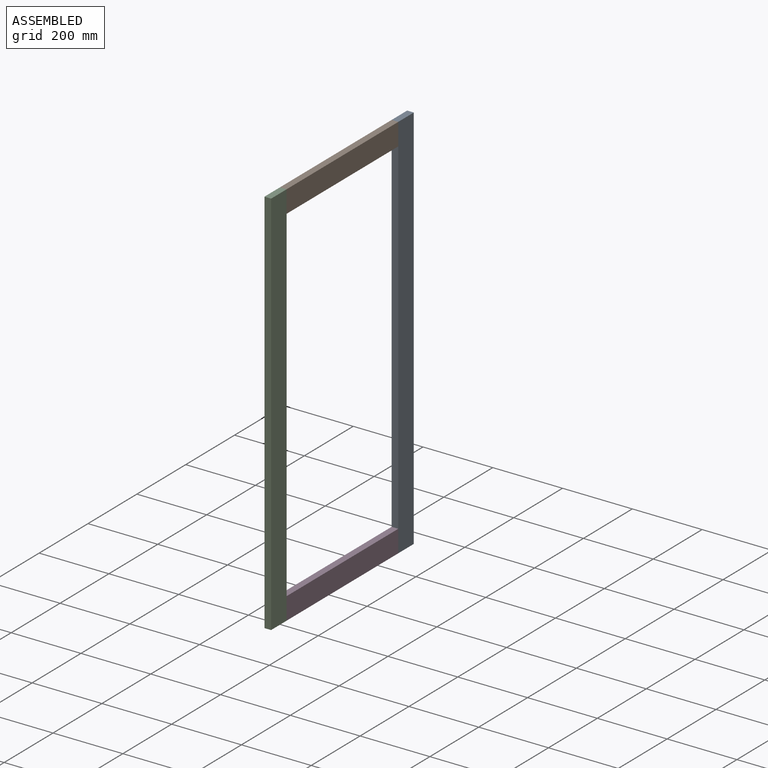
[diagram: assembled view]
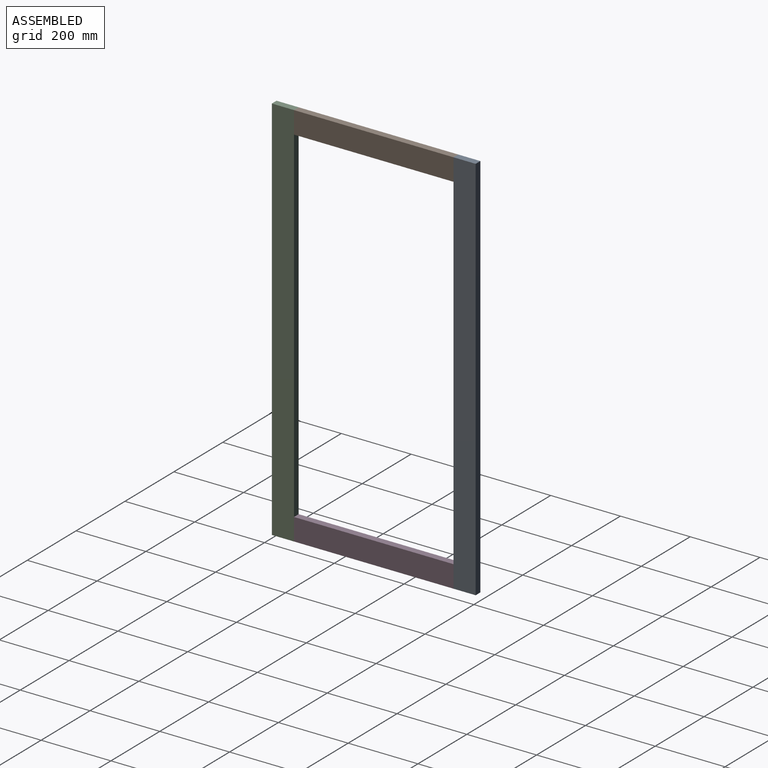
[diagram: assembled view, second angle]
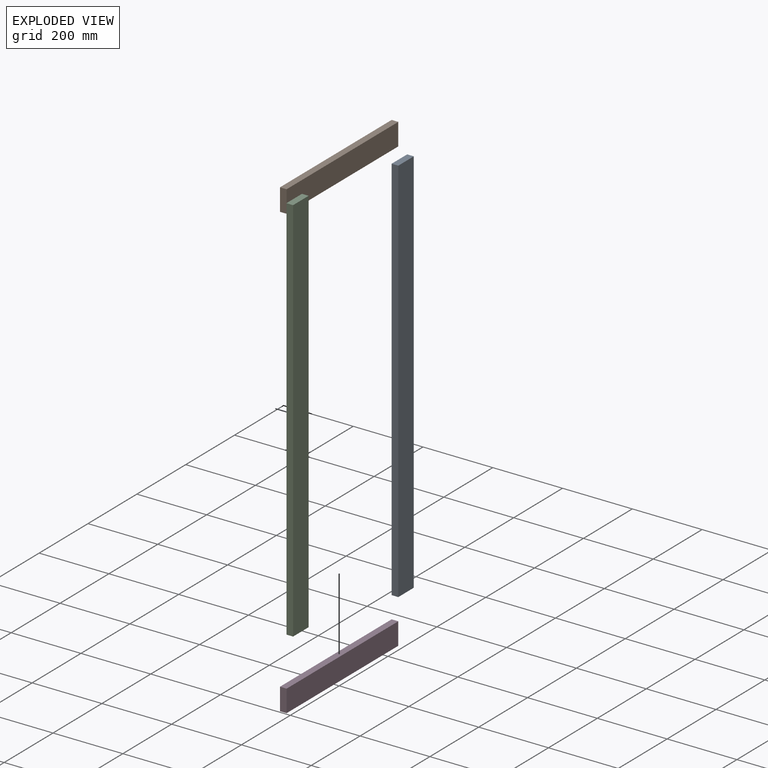
[diagram: exploded view]
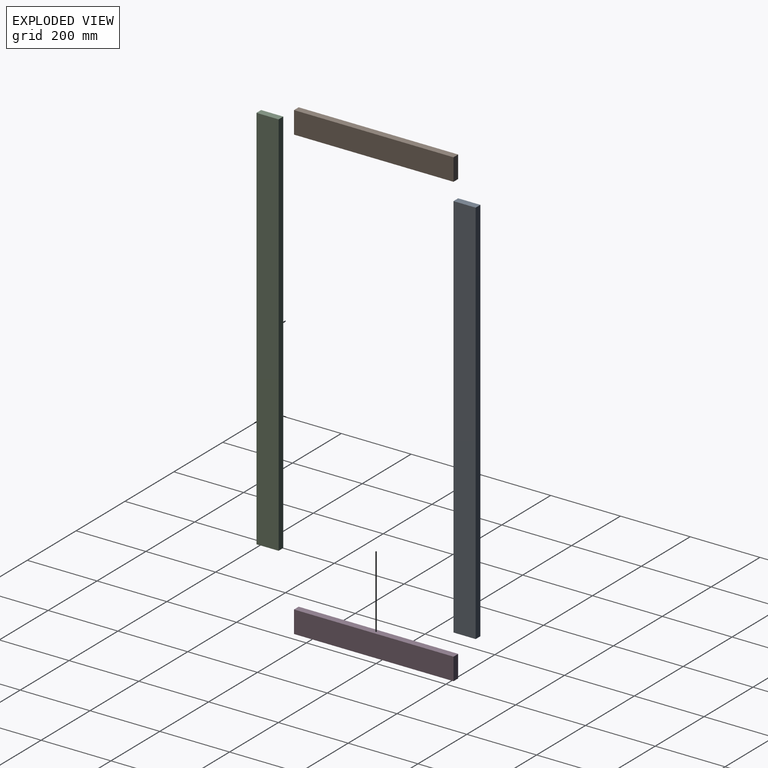
[diagram: exploded view, second angle]
ASSEMBLY  parts=4 mates=9
PART A: 6 faces, bbox 19.1x63.5x1117.6 mm
  f0: plane 1117.6x19.05mm, normal (0,-1,0), area 21290.3mm2, adj f1,f3,f4,f5
  f1: plane 1117.6x63.5mm, normal (1,0,0), area 70967.6mm2, adj f0,f2,f4,f5
  f2: plane 1117.6x19.05mm, normal (0,1,0), area 21290.3mm2, adj f1,f3,f4,f5
  f3: plane 1117.6x63.5mm, normal (-1,0,0), area 70967.6mm2, adj f0,f2,f4,f5
  f4: plane 63.5x19.05mm, normal (0,0,1), area 1209.7mm2, adj f0,f1,f2,f3
  f5: plane 63.5x19.05mm, normal (0,0,-1), area 1209.7mm2, adj f0,f1,f2,f3
PART B: 6 faces, bbox 457.2x19.1x63.5 mm
  f0: plane 457.2x63.5mm, normal (0,1,0), area 29032.2mm2, adj f1,f3,f4,f5
  f1: plane 457.2x19.05mm, normal (0,0,1), area 8709.7mm2, adj f0,f2,f4,f5
  f2: plane 457.2x63.5mm, normal (0,-1,0), area 29032.2mm2, adj f1,f3,f4,f5
  f3: plane 457.2x19.05mm, normal (0,0,-1), area 8709.7mm2, adj f0,f2,f4,f5
  f4: plane 63.5x19.05mm, normal (1,0,0), area 1209.7mm2, adj f0,f1,f2,f3
  f5: plane 63.5x19.05mm, normal (-1,0,0), area 1209.7mm2, adj f0,f1,f2,f3
PART C: same geometry as A
PART D: same geometry as B
PLACE A t=(0,260.35,-527.05)mm
PLACE B rot(axis=(0,0,-1),90deg) t=(0,0,0)mm fixed
PLACE C t=(0,-260.35,-527.05)mm
PLACE D rot(axis=(0,0,-1),90deg) t=(0,0,-1054.1)mm
MATE planar C.f3 <-> B.f2  axis (-1,0,0) through (-9.52,-228.6,31.75)mm
MATE planar B.f4 <-> C.f2  axis (0,-1,0) through (-9.52,-228.6,31.75)mm
MATE planar C.f5 <-> D.f3  axis (0,0,-1) through (0,-260.35,-1085.85)mm
MATE planar C.f4 <-> B.f1  axis (0,0,1) through (0,-260.35,31.75)mm
MATE planar D.f2 <-> A.f3  axis (-1,0,0) through (-9.52,228.6,-1054.1)mm
MATE planar A.f4 <-> B.f1  axis (0,0,1) through (0,260.35,31.75)mm
MATE planar A.f0 <-> B.f5  axis (0,-1,0) through (-9.52,228.6,31.75)mm
MATE planar A.f0 <-> D.f5  axis (0,-1,0) through (0,228.6,-527.05)mm
MATE planar B.f2 <-> A.f3  axis (-1,0,0) through (-9.52,228.6,31.75)mm
